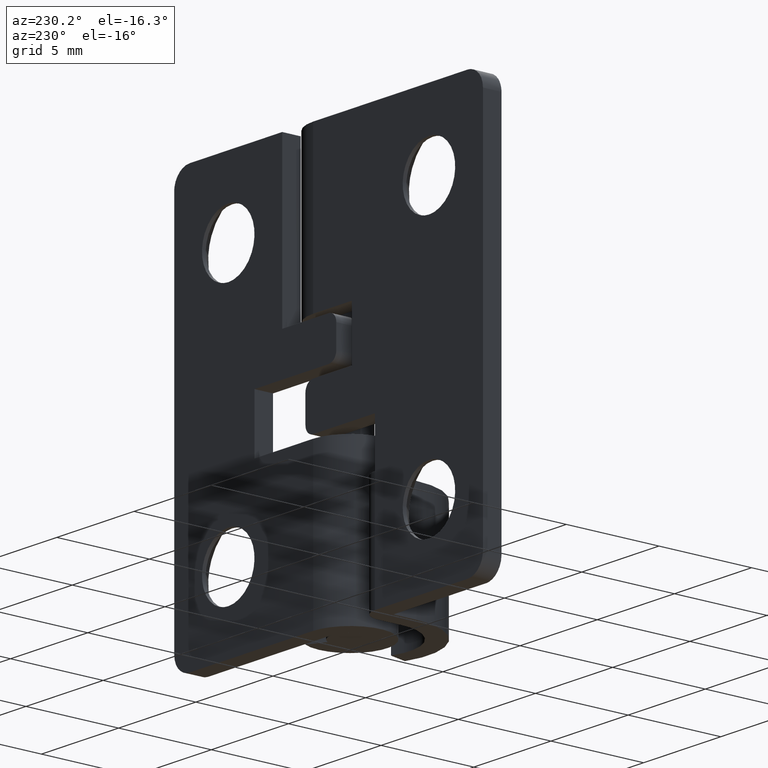
[diagram: clean part render]
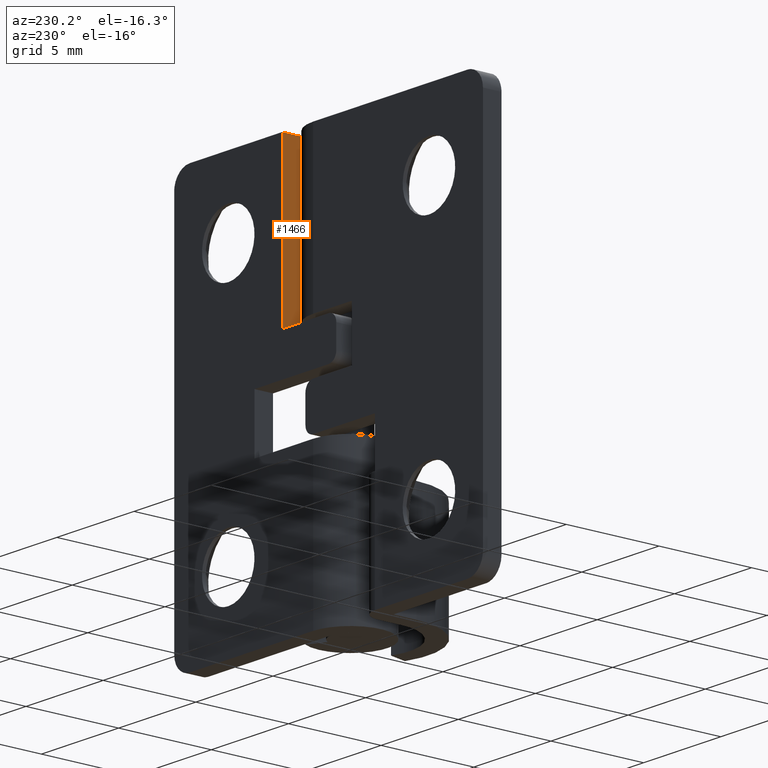
[diagram: same view with one face highlighted and labeled with its STEP entity id]
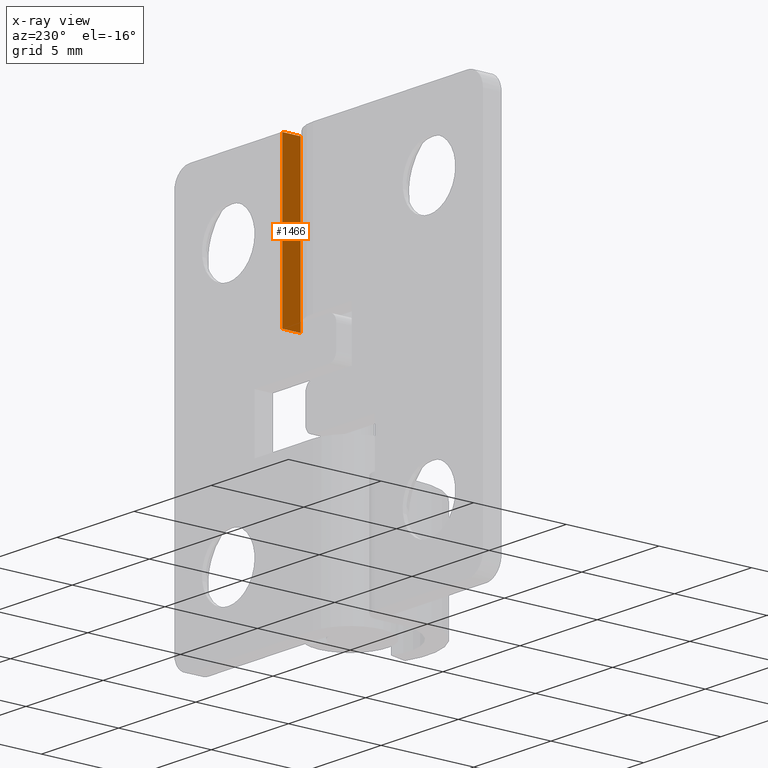
[diagram: x-ray of the same camera — body ghosted, the highlighted face saturated]
A machine part, auxiliary view. The second image highlights one B-rep face of the part: STEP entity #1466.
The next image is the same camera in x-ray: the body ghosted, the highlighted face saturated — about 0% of this face is hidden behind the body in this view.
In plain terms, the highlighted face is a freeform B-spline surface patch.
Its self-contained STEP definition (entity closure, byte-faithful):
#1112=CARTESIAN_POINT('',(2.0,1.000000000000022,22.0));
#1113=VERTEX_POINT('',#1112);
#1119=CARTESIAN_POINT('',(2.0,1.0,13.500000000000000));
#1120=VERTEX_POINT('',#1119);
#1121=CARTESIAN_POINT('',(2.0,1.0,13.500000000000000));
#1122=CARTESIAN_POINT('',(2.0,1.000000000000022,22.0));
#1123=QUASI_UNIFORM_CURVE('',1,(#1121,#1122),.UNSPECIFIED.,.F.,.U.);
#1124=EDGE_CURVE('',#1120,#1113,#1123,.T.);
#1390=CARTESIAN_POINT('',(2.0,2.000008000000000,13.500000000000000));
#1391=VERTEX_POINT('',#1390);
#1399=CARTESIAN_POINT('',(2.0,1.0,13.500000000000000));
#1400=CARTESIAN_POINT('',(2.0,2.000008000000000,13.500000000000000));
#1401=QUASI_UNIFORM_CURVE('',1,(#1399,#1400),.UNSPECIFIED.,.F.,.U.);
#1402=EDGE_CURVE('',#1120,#1391,#1401,.T.);
#1445=CARTESIAN_POINT('',(2.0,0.950049602338210,22.424574983525350));
#1446=CARTESIAN_POINT('',(2.0,0.950049602338210,13.075424788486879));
#1447=CARTESIAN_POINT('',(2.0,2.049958424484096,22.424574983525350));
#1448=CARTESIAN_POINT('',(2.0,2.049958424484096,13.075424788486879));
#1449=B_SPLINE_SURFACE_WITH_KNOTS('',1,1,((#1445,#1447),(#1446,#1448)),.UNSPECIFIED.,.F.,.F.,.U.,(2,2),(2,2),(0.0,9.349150195038471),(0.041708334948495,0.958291687403247),.UNSPECIFIED.);
#1450=CARTESIAN_POINT('',(2.0,2.000008000000000,22.0));
#1451=VERTEX_POINT('',#1450);
#1452=CARTESIAN_POINT('',(2.0,2.000008000000000,22.0));
#1453=CARTESIAN_POINT('',(2.0,2.000008000000000,13.500000000000000));
#1454=QUASI_UNIFORM_CURVE('',1,(#1452,#1453),.UNSPECIFIED.,.F.,.U.);
#1455=EDGE_CURVE('',#1451,#1391,#1454,.T.);
#1456=ORIENTED_EDGE('',*,*,#1455,.T.);
#1457=ORIENTED_EDGE('',*,*,#1402,.F.);
#1458=ORIENTED_EDGE('',*,*,#1124,.T.);
#1459=CARTESIAN_POINT('',(2.0,1.000000000000022,22.0));
#1460=CARTESIAN_POINT('',(2.0,2.000008000000000,22.0));
#1461=QUASI_UNIFORM_CURVE('',1,(#1459,#1460),.UNSPECIFIED.,.F.,.U.);
#1462=EDGE_CURVE('',#1113,#1451,#1461,.T.);
#1463=ORIENTED_EDGE('',*,*,#1462,.T.);
#1464=EDGE_LOOP('',(#1456,#1457,#1458,#1463));
#1465=FACE_OUTER_BOUND('',#1464,.T.);
#1466=ADVANCED_FACE('',(#1465),#1449,.F.);